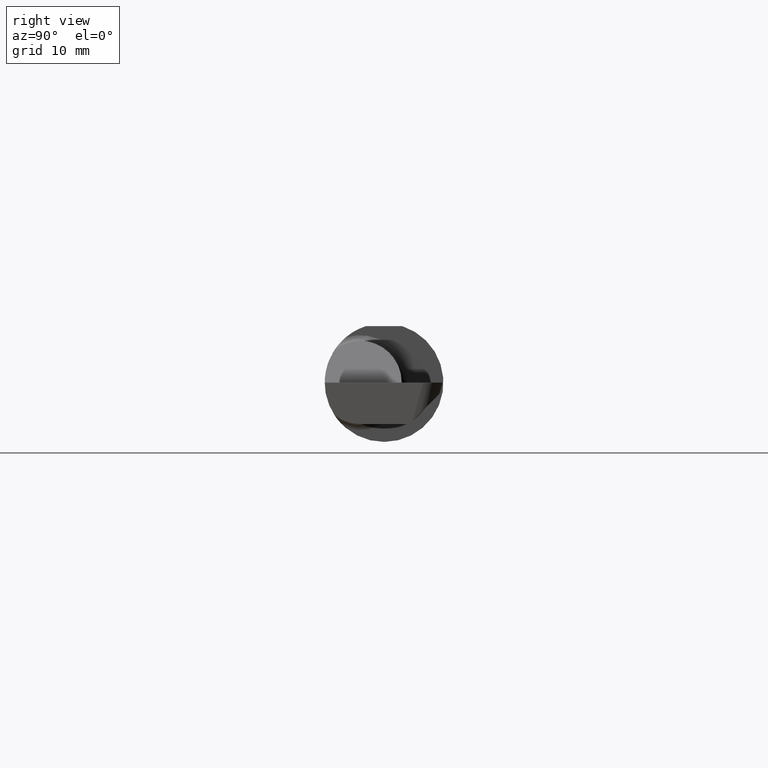
[diagram: clean part render]
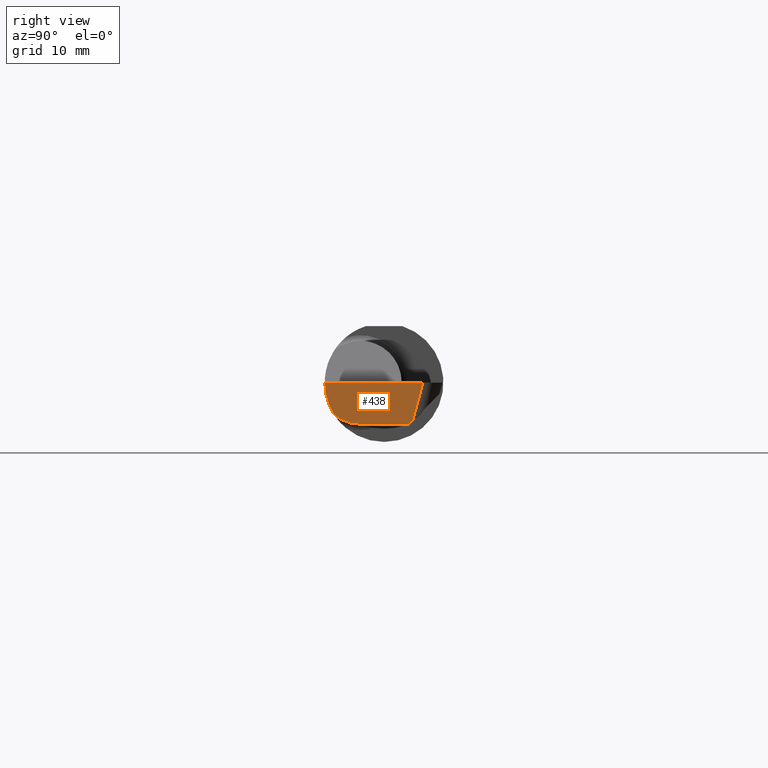
[diagram: same view with one face highlighted and labeled with its STEP entity id]
A machine part, right view. The second image highlights one B-rep face of the part: STEP entity #438.
In plain terms, the highlighted planar face has unit normal (-0.9992, 0.0349, 0.0175).
Its self-contained STEP definition (entity closure, byte-faithful):
#4 = VECTOR ( 'NONE', #705, 39.37007874015748143 ) ;
#25 = VECTOR ( 'NONE', #325, 39.37007874015748854 ) ;
#44 = LINE ( 'NONE', #688, #585 ) ;
#45 = CARTESIAN_POINT ( 'NONE',  ( 2.987584882537838826, -0.1008500000000000368, -0.1750000000000000722 ) ) ;
#48 = CARTESIAN_POINT ( 'NONE',  ( 2.985438186182187259, -0.2498499999999999888, 0.000000000000000000 ) ) ;
#66 = CARTESIAN_POINT ( 'NONE',  ( 2.985143277913549831, -0.1771157075472508391, -0.1623092683844332140 ) ) ;
#67 = VERTEX_POINT ( 'NONE', #198 ) ;
#79 = PLANE ( 'NONE',  #144 ) ;
#93 = LINE ( 'NONE', #257, #404 ) ;
#112 = CARTESIAN_POINT ( 'NONE',  ( 2.984481223124517690, -0.2080850024789289432, -0.1382955322609668858 ) ) ;
#120 = ORIENTED_EDGE ( 'NONE', *, *, #700, .F. ) ;
#141 = FACE_OUTER_BOUND ( 'NONE', #455, .T. ) ;
#144 = AXIS2_PLACEMENT_3D ( 'NONE', #675, #292, #577 ) ;
#160 =( BOUNDED_CURVE ( )  B_SPLINE_CURVE ( 3, ( #385, #708, #393, #48 ),
 .UNSPECIFIED., .F., .T. ) 
 B_SPLINE_CURVE_WITH_KNOTS ( ( 4, 4 ),
 ( 6.160376845738947615, 6.746954780470606039 ),
 .UNSPECIFIED. ) 
 CURVE ( )  GEOMETRIC_REPRESENTATION_ITEM ( )  RATIONAL_B_SPLINE_CURVE ( ( 1.000000000000000000, 0.9715321379117538569, 0.9715321379117538569, 1.000000000000000000 ) ) 
 REPRESENTATION_ITEM ( '' )  );
#166 = VERTEX_POINT ( 'NONE', #587 ) ;
#167 = CARTESIAN_POINT ( 'NONE',  ( 2.988089862307433453, -0.08638927141514796126, -0.1750000000000000722 ) ) ;
#198 = CARTESIAN_POINT ( 'NONE',  ( 2.994802109425249714, 0.1058243371481696615, -0.1750000000000001277 ) ) ;
#215 = VERTEX_POINT ( 'NONE', #45 ) ;
#257 = CARTESIAN_POINT ( 'NONE',  ( 2.999952099699010333, 0.1657741035941333874, 0.000000000000000000 ) ) ;
#280 = VERTEX_POINT ( 'NONE', #554 ) ;
#282 = ORIENTED_EDGE ( 'NONE', *, *, #284, .T. ) ;
#284 = EDGE_CURVE ( 'NONE', #166, #215, #631, .T. ) ;
#292 = DIRECTION ( 'NONE',  ( -0.9992386149554828290, 0.03489418134010831979, 0.01745240643728358798 ) ) ;
#317 = DIRECTION ( 'NONE',  ( 0.02590004391968273034, 0.2587322210431824976, 0.9656017944882975268 ) ) ;
#325 = DIRECTION ( 'NONE',  ( -0.03701744261649914797, -0.7066221440565398915, -0.7066221440565477740 ) ) ;
#358 = VERTEX_POINT ( 'NONE', #658 ) ;
#385 = CARTESIAN_POINT ( 'NONE',  ( 2.984481223124517690, -0.2080850024789289432, -0.1382955322609668858 ) ) ;
#393 = CARTESIAN_POINT ( 'NONE',  ( 2.984572483848591862, -0.2498499999999999610, -0.04956584089959716749 ) ) ;
#404 = VECTOR ( 'NONE', #477, 39.37007874015748854 ) ;
#438 = ADVANCED_FACE ( 'NONE', ( #141 ), #79, .F. ) ;
#449 = LINE ( 'NONE', #167, #4 ) ;
#452 = ORIENTED_EDGE ( 'NONE', *, *, #580, .T. ) ;
#454 = CARTESIAN_POINT ( 'NONE',  ( 2.986216381845219203, -0.1400387324517231025, -0.1750000000000000999 ) ) ;
#455 = EDGE_LOOP ( 'NONE', ( #710, #627, #452, #120, #282, #656 ) ) ;
#474 = LINE ( 'NONE', #525, #25 ) ;
#477 = DIRECTION ( 'NONE',  ( -0.03489949670249561930, -0.9993908270190959842, 0.000000000000000000 ) ) ;
#508 = VERTEX_POINT ( 'NONE', #531 ) ;
#525 = CARTESIAN_POINT ( 'NONE',  ( 2.997444159268687347, 0.1562581541034807064, -0.1245661830446885138 ) ) ;
#527 = EDGE_CURVE ( 'NONE', #280, #67, #474, .T. ) ;
#531 = CARTESIAN_POINT ( 'NONE',  ( 2.999872990785927396, 0.1635087207221616878, 0.000000000000000000 ) ) ;
#554 = CARTESIAN_POINT ( 'NONE',  ( 2.995574489715794542, 0.1205682248496117576, -0.1602561122985578790 ) ) ;
#577 = DIRECTION ( 'NONE',  ( -0.03489949670249561930, -0.9993908270190959842, 0.000000000000000000 ) ) ;
#580 = EDGE_CURVE ( 'NONE', #508, #358, #93, .T. ) ;
#585 = VECTOR ( 'NONE', #317, 39.37007874015747433 ) ;
#587 = CARTESIAN_POINT ( 'NONE',  ( 2.984481223124517690, -0.2080850024789289432, -0.1382955322609668858 ) ) ;
#613 = EDGE_CURVE ( 'NONE', #280, #508, #44, .T. ) ;
#627 = ORIENTED_EDGE ( 'NONE', *, *, #613, .T. ) ;
#631 =( BOUNDED_CURVE ( )  B_SPLINE_CURVE ( 3, ( #112, #66, #454, #667 ),
 .UNSPECIFIED., .F., .F. ) 
 B_SPLINE_CURVE_WITH_KNOTS ( ( 4, 4 ),
 ( 0.4474640105399719792, 1.107026853503876973 ),
 .UNSPECIFIED. ) 
 CURVE ( )  GEOMETRIC_REPRESENTATION_ITEM ( )  RATIONAL_B_SPLINE_CURVE ( ( 1.000000000000000000, 0.9640754331822831702, 0.9640754331822831702, 1.000000000000000000 ) ) 
 REPRESENTATION_ITEM ( '' )  );
#654 = EDGE_CURVE ( 'NONE', #67, #215, #449, .T. ) ;
#656 = ORIENTED_EDGE ( 'NONE', *, *, #654, .F. ) ;
#658 = CARTESIAN_POINT ( 'NONE',  ( 2.985438186182187259, -0.2498499999999999888, 0.000000000000000000 ) ) ;
#667 = CARTESIAN_POINT ( 'NONE',  ( 2.987584882537838826, -0.1008500000000000368, -0.1750000000000000722 ) ) ;
#675 = CARTESIAN_POINT ( 'NONE',  ( 2.999952099699010333, 0.1657741035941333874, 0.000000000000000000 ) ) ;
#688 = CARTESIAN_POINT ( 'NONE',  ( 2.999888224582237584, 0.1636609009256532465, 0.0005679442513367036422 ) ) ;
#700 = EDGE_CURVE ( 'NONE', #166, #358, #160, .T. ) ;
#705 = DIRECTION ( 'NONE',  ( -0.03489949670249561930, -0.9993908270190959842, 1.222058880457094148E-16 ) ) ;
#708 = CARTESIAN_POINT ( 'NONE',  ( 2.984244149176539018, -0.2355204011147991328, -0.09701513151466779894 ) ) ;
#710 = ORIENTED_EDGE ( 'NONE', *, *, #527, .F. ) ;